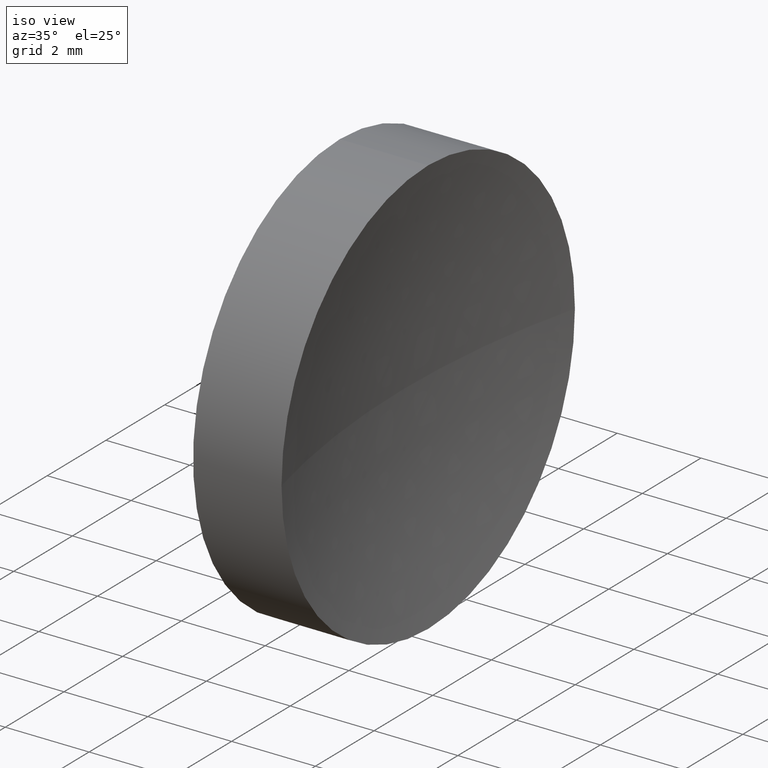
[diagram: clean part render]
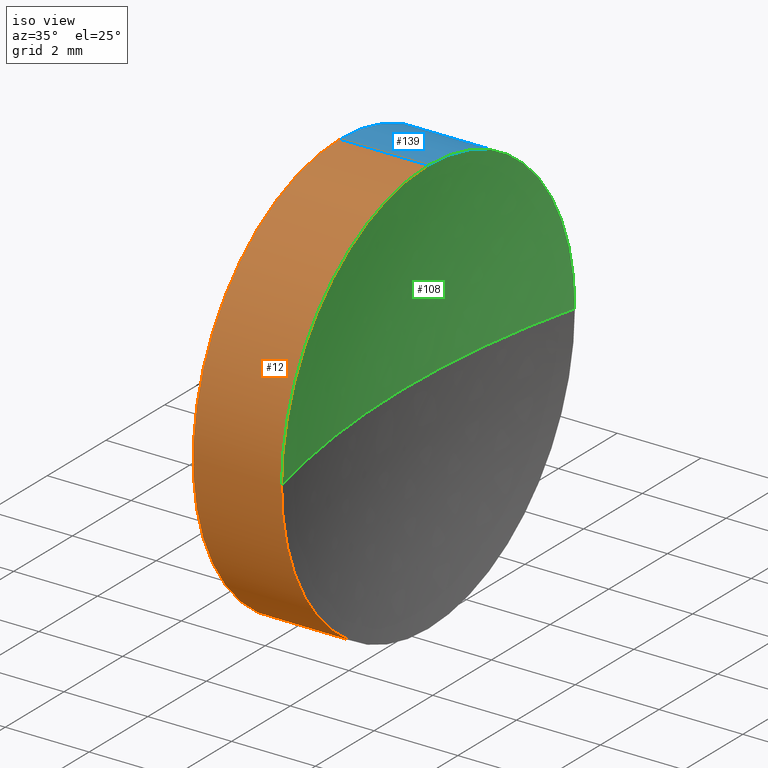
[diagram: same view with three faces highlighted in distinct colors, each labeled with its STEP entity id]
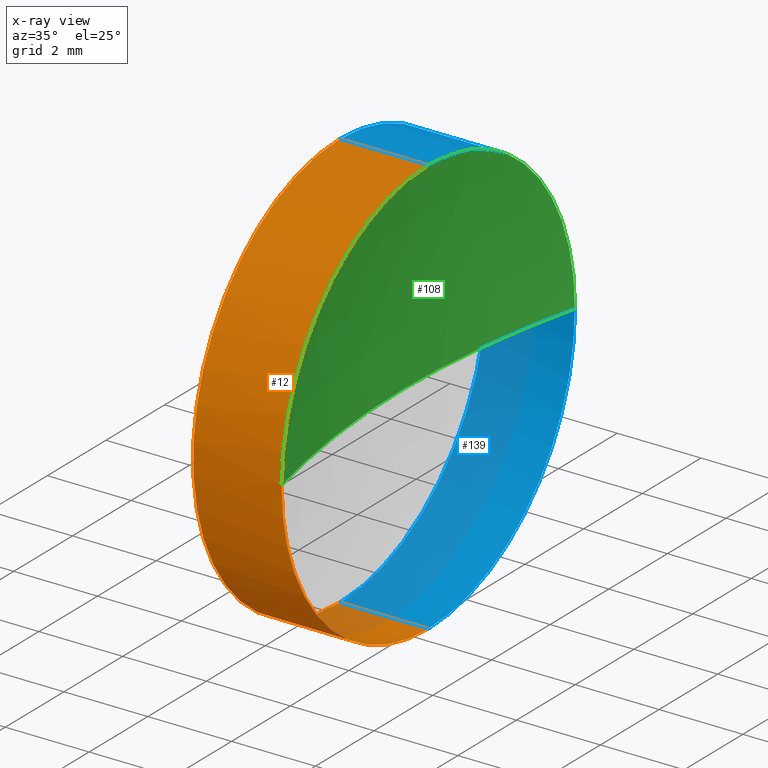
[diagram: x-ray of the same camera — body ghosted, the three highlighted faces saturated]
A machine part, iso view with three faces highlighted in distinct colors.
The next image is the same camera in x-ray (body ghosted, the three faces saturated) — at least one of them is partly hidden behind the body in this view.
Their STEP definitions:

[orange] entity #12 — the highlighted cylindrical surface (partial cylindrical patch) has radius 5 mm, axis along (-1, -0, -0).
#3 = AXIS2_PLACEMENT_3D ( 'NONE', #104, #116, #4 ) ;
#4 = DIRECTION ( 'NONE',  ( 0.0000000000000000000, 0.0000000000000000000, 1.000000000000000000 ) ) ;
#5 = DIRECTION ( 'NONE',  ( -1.000000000000000000, -0.0000000000000000000, -0.0000000000000000000 ) ) ;
#8 = EDGE_CURVE ( 'NONE', #183, #85, #186, .T. ) ;
#12 = ADVANCED_FACE ( 'NONE', ( #173 ), #156, .T. ) ;
#22 = VECTOR ( 'NONE', #124, 1000.000000000000000 ) ;
#25 = CARTESIAN_POINT ( 'NONE',  ( 46.42958549791029600, 26.08904114919495900, 0.0000000000000000000 ) ) ;
#29 = CARTESIAN_POINT ( 'NONE',  ( 44.31958549791029600, 26.08904114919495900, 5.000000000000000900 ) ) ;
#32 = LINE ( 'NONE', #109, #22 ) ;
#39 = DIRECTION ( 'NONE',  ( 0.0000000000000000000, 0.0000000000000000000, 1.000000000000000000 ) ) ;
#41 = VERTEX_POINT ( 'NONE', #81 ) ;
#42 = EDGE_CURVE ( 'NONE', #41, #183, #122, .T. ) ;
#44 = VECTOR ( 'NONE', #53, 1000.000000000000000 ) ;
#53 = DIRECTION ( 'NONE',  ( -1.000000000000000000, -0.0000000000000000000, -0.0000000000000000000 ) ) ;
#56 = AXIS2_PLACEMENT_3D ( 'NONE', #177, #181, #57 ) ;
#57 = DIRECTION ( 'NONE',  ( 0.0000000000000000000, 0.0000000000000000000, 1.000000000000000000 ) ) ;
#70 = VERTEX_POINT ( 'NONE', #80 ) ;
#79 = ORIENTED_EDGE ( 'NONE', *, *, #155, .T. ) ;
#80 = CARTESIAN_POINT ( 'NONE',  ( 46.42958549791030300, 21.08904114919495900, -6.123233995736764300E-016 ) ) ;
#81 = CARTESIAN_POINT ( 'NONE',  ( 46.42958549791029600, 26.08904114919495900, -5.000000000000000900 ) ) ;
#82 = DIRECTION ( 'NONE',  ( -1.000000000000000000, -0.0000000000000000000, -0.0000000000000000000 ) ) ;
#85 = VERTEX_POINT ( 'NONE', #29 ) ;
#94 = EDGE_CURVE ( 'NONE', #70, #141, #146, .T. ) ;
#97 = DIRECTION ( 'NONE',  ( 0.0000000000000000000, 0.0000000000000000000, 1.000000000000000000 ) ) ;
#100 = EDGE_LOOP ( 'NONE', ( #128, #126, #105, #79, #102 ) ) ;
#102 = ORIENTED_EDGE ( 'NONE', *, *, #8, .F. ) ;
#103 = AXIS2_PLACEMENT_3D ( 'NONE', #159, #5, #39 ) ;
#104 = CARTESIAN_POINT ( 'NONE',  ( 42.44986111413682300, 26.08904114919495900, 0.0000000000000000000 ) ) ;
#105 = ORIENTED_EDGE ( 'NONE', *, *, #94, .T. ) ;
#109 = CARTESIAN_POINT ( 'NONE',  ( 42.44986111413682300, 26.08904114919495900, 5.000000000000000900 ) ) ;
#111 = CIRCLE ( 'NONE', #56, 5.000000000000000900 ) ;
#116 = DIRECTION ( 'NONE',  ( -1.000000000000000000, -0.0000000000000000000, -0.0000000000000000000 ) ) ;
#122 = LINE ( 'NONE', #160, #44 ) ;
#124 = DIRECTION ( 'NONE',  ( -1.000000000000000000, -0.0000000000000000000, -0.0000000000000000000 ) ) ;
#126 = ORIENTED_EDGE ( 'NONE', *, *, #169, .T. ) ;
#128 = ORIENTED_EDGE ( 'NONE', *, *, #42, .F. ) ;
#137 = CARTESIAN_POINT ( 'NONE',  ( 46.42958549791029600, 26.08904114919495900, 5.000000000000000900 ) ) ;
#141 = VERTEX_POINT ( 'NONE', #137 ) ;
#146 = CIRCLE ( 'NONE', #185, 5.000000000000000900 ) ;
#154 = CARTESIAN_POINT ( 'NONE',  ( 44.31958549791029600, 26.08904114919495900, -5.000000000000000900 ) ) ;
#155 = EDGE_CURVE ( 'NONE', #141, #85, #32, .T. ) ;
#156 = CYLINDRICAL_SURFACE ( 'NONE', #3, 5.000000000000000900 ) ;
#159 = CARTESIAN_POINT ( 'NONE',  ( 44.31958549791029600, 26.08904114919495900, 0.0000000000000000000 ) ) ;
#160 = CARTESIAN_POINT ( 'NONE',  ( 42.44986111413682300, 26.08904114919495900, -5.000000000000000900 ) ) ;
#169 = EDGE_CURVE ( 'NONE', #41, #70, #111, .T. ) ;
#173 = FACE_OUTER_BOUND ( 'NONE', #100, .T. ) ;
#177 = CARTESIAN_POINT ( 'NONE',  ( 46.42958549791029600, 26.08904114919495900, 0.0000000000000000000 ) ) ;
#181 = DIRECTION ( 'NONE',  ( -1.000000000000000000, -0.0000000000000000000, -0.0000000000000000000 ) ) ;
#183 = VERTEX_POINT ( 'NONE', #154 ) ;
#185 = AXIS2_PLACEMENT_3D ( 'NONE', #25, #82, #97 ) ;
#186 = CIRCLE ( 'NONE', #103, 5.000000000000000900 ) ;

[blue] entity #139 — the highlighted cylindrical surface (partial cylindrical patch) has radius 5 mm, axis along (-1, -0, -0).
#16 = VERTEX_POINT ( 'NONE', #150 ) ;
#18 = AXIS2_PLACEMENT_3D ( 'NONE', #115, #35, #145 ) ;
#21 = DIRECTION ( 'NONE',  ( 0.0000000000000000000, 0.0000000000000000000, 1.000000000000000000 ) ) ;
#22 = VECTOR ( 'NONE', #124, 1000.000000000000000 ) ;
#23 = ORIENTED_EDGE ( 'NONE', *, *, #63, .T. ) ;
#24 = DIRECTION ( 'NONE',  ( -1.000000000000000000, -0.0000000000000000000, -0.0000000000000000000 ) ) ;
#26 = EDGE_LOOP ( 'NONE', ( #168, #87, #77, #62, #23 ) ) ;
#29 = CARTESIAN_POINT ( 'NONE',  ( 44.31958549791029600, 26.08904114919495900, 5.000000000000000900 ) ) ;
#32 = LINE ( 'NONE', #109, #22 ) ;
#34 = AXIS2_PLACEMENT_3D ( 'NONE', #107, #24, #135 ) ;
#35 = DIRECTION ( 'NONE',  ( -1.000000000000000000, -0.0000000000000000000, -0.0000000000000000000 ) ) ;
#41 = VERTEX_POINT ( 'NONE', #81 ) ;
#42 = EDGE_CURVE ( 'NONE', #41, #183, #122, .T. ) ;
#44 = VECTOR ( 'NONE', #53, 1000.000000000000000 ) ;
#46 = CARTESIAN_POINT ( 'NONE',  ( 46.42958549791029600, 26.08904114919495900, 0.0000000000000000000 ) ) ;
#53 = DIRECTION ( 'NONE',  ( -1.000000000000000000, -0.0000000000000000000, -0.0000000000000000000 ) ) ;
#59 = EDGE_CURVE ( 'NONE', #85, #183, #170, .T. ) ;
#62 = ORIENTED_EDGE ( 'NONE', *, *, #155, .F. ) ;
#63 = EDGE_CURVE ( 'NONE', #141, #16, #117, .T. ) ;
#65 = AXIS2_PLACEMENT_3D ( 'NONE', #174, #88, #21 ) ;
#77 = ORIENTED_EDGE ( 'NONE', *, *, #59, .F. ) ;
#81 = CARTESIAN_POINT ( 'NONE',  ( 46.42958549791029600, 26.08904114919495900, -5.000000000000000900 ) ) ;
#85 = VERTEX_POINT ( 'NONE', #29 ) ;
#87 = ORIENTED_EDGE ( 'NONE', *, *, #42, .T. ) ;
#88 = DIRECTION ( 'NONE',  ( -1.000000000000000000, -0.0000000000000000000, -0.0000000000000000000 ) ) ;
#89 = EDGE_CURVE ( 'NONE', #16, #41, #132, .T. ) ;
#107 = CARTESIAN_POINT ( 'NONE',  ( 42.44986111413682300, 26.08904114919495900, 0.0000000000000000000 ) ) ;
#109 = CARTESIAN_POINT ( 'NONE',  ( 42.44986111413682300, 26.08904114919495900, 5.000000000000000900 ) ) ;
#110 = AXIS2_PLACEMENT_3D ( 'NONE', #46, #123, #179 ) ;
#115 = CARTESIAN_POINT ( 'NONE',  ( 44.31958549791029600, 26.08904114919495900, 0.0000000000000000000 ) ) ;
#117 = CIRCLE ( 'NONE', #65, 5.000000000000000900 ) ;
#122 = LINE ( 'NONE', #160, #44 ) ;
#123 = DIRECTION ( 'NONE',  ( -1.000000000000000000, -0.0000000000000000000, -0.0000000000000000000 ) ) ;
#124 = DIRECTION ( 'NONE',  ( -1.000000000000000000, -0.0000000000000000000, -0.0000000000000000000 ) ) ;
#125 = CYLINDRICAL_SURFACE ( 'NONE', #34, 5.000000000000000900 ) ;
#132 = CIRCLE ( 'NONE', #110, 5.000000000000000900 ) ;
#135 = DIRECTION ( 'NONE',  ( 0.0000000000000000000, 0.0000000000000000000, 1.000000000000000000 ) ) ;
#137 = CARTESIAN_POINT ( 'NONE',  ( 46.42958549791029600, 26.08904114919495900, 5.000000000000000900 ) ) ;
#139 = ADVANCED_FACE ( 'NONE', ( #163 ), #125, .T. ) ;
#141 = VERTEX_POINT ( 'NONE', #137 ) ;
#145 = DIRECTION ( 'NONE',  ( 0.0000000000000000000, 0.0000000000000000000, 1.000000000000000000 ) ) ;
#150 = CARTESIAN_POINT ( 'NONE',  ( 46.42958549791030300, 31.08904114919495900, 0.0000000000000000000 ) ) ;
#154 = CARTESIAN_POINT ( 'NONE',  ( 44.31958549791029600, 26.08904114919495900, -5.000000000000000900 ) ) ;
#155 = EDGE_CURVE ( 'NONE', #141, #85, #32, .T. ) ;
#160 = CARTESIAN_POINT ( 'NONE',  ( 42.44986111413682300, 26.08904114919495900, -5.000000000000000900 ) ) ;
#163 = FACE_OUTER_BOUND ( 'NONE', #26, .T. ) ;
#168 = ORIENTED_EDGE ( 'NONE', *, *, #89, .T. ) ;
#170 = CIRCLE ( 'NONE', #18, 5.000000000000000900 ) ;
#174 = CARTESIAN_POINT ( 'NONE',  ( 46.42958549791029600, 26.08904114919495900, 0.0000000000000000000 ) ) ;
#179 = DIRECTION ( 'NONE',  ( 0.0000000000000000000, 0.0000000000000000000, 1.000000000000000000 ) ) ;
#183 = VERTEX_POINT ( 'NONE', #154 ) ;

[green] entity #108 — the highlighted spherical surface has radius 20.7968 mm.
#9 = DIRECTION ( 'NONE',  ( 0.0000000000000000000, 1.000000000000000000, 0.0000000000000000000 ) ) ;
#13 = DIRECTION ( 'NONE',  ( 0.0000000000000000000, 0.0000000000000000000, -1.000000000000000000 ) ) ;
#14 = AXIS2_PLACEMENT_3D ( 'NONE', #93, #92, #71 ) ;
#16 = VERTEX_POINT ( 'NONE', #150 ) ;
#19 = CIRCLE ( 'NONE', #144, 20.79680093179732500 ) ;
#21 = DIRECTION ( 'NONE',  ( 0.0000000000000000000, 0.0000000000000000000, 1.000000000000000000 ) ) ;
#25 = CARTESIAN_POINT ( 'NONE',  ( 46.42958549791029600, 26.08904114919495900, 0.0000000000000000000 ) ) ;
#45 = ORIENTED_EDGE ( 'NONE', *, *, #63, .F. ) ;
#47 = AXIS2_PLACEMENT_3D ( 'NONE', #60, #13, #9 ) ;
#60 = CARTESIAN_POINT ( 'NONE',  ( 66.61638635878981100, 26.08904114919495500, 0.0000000000000000000 ) ) ;
#63 = EDGE_CURVE ( 'NONE', #141, #16, #117, .T. ) ;
#65 = AXIS2_PLACEMENT_3D ( 'NONE', #174, #88, #21 ) ;
#70 = VERTEX_POINT ( 'NONE', #80 ) ;
#71 = DIRECTION ( 'NONE',  ( 1.000000000000000000, 0.0000000000000000000, 0.0000000000000000000 ) ) ;
#80 = CARTESIAN_POINT ( 'NONE',  ( 46.42958549791030300, 21.08904114919495900, -6.123233995736764300E-016 ) ) ;
#82 = DIRECTION ( 'NONE',  ( -1.000000000000000000, -0.0000000000000000000, -0.0000000000000000000 ) ) ;
#84 = DIRECTION ( 'NONE',  ( 0.0000000000000000000, 1.000000000000000000, 1.224646799147353200E-016 ) ) ;
#86 = FACE_OUTER_BOUND ( 'NONE', #136, .T. ) ;
#88 = DIRECTION ( 'NONE',  ( -1.000000000000000000, -0.0000000000000000000, -0.0000000000000000000 ) ) ;
#92 = DIRECTION ( 'NONE',  ( 0.0000000000000000000, 0.0000000000000000000, 1.000000000000000000 ) ) ;
#93 = CARTESIAN_POINT ( 'NONE',  ( 66.61638635878981100, 26.08904114919495500, 0.0000000000000000000 ) ) ;
#94 = EDGE_CURVE ( 'NONE', #70, #141, #146, .T. ) ;
#95 = VERTEX_POINT ( 'NONE', #120 ) ;
#96 = CARTESIAN_POINT ( 'NONE',  ( 66.61638635878981100, 26.08904114919495500, 0.0000000000000000000 ) ) ;
#97 = DIRECTION ( 'NONE',  ( 0.0000000000000000000, 0.0000000000000000000, 1.000000000000000000 ) ) ;
#98 = CIRCLE ( 'NONE', #14, 20.79680093179732500 ) ;
#101 = EDGE_CURVE ( 'NONE', #16, #95, #98, .T. ) ;
#108 = ADVANCED_FACE ( 'NONE', ( #86 ), #166, .F. ) ;
#117 = CIRCLE ( 'NONE', #65, 5.000000000000000900 ) ;
#120 = CARTESIAN_POINT ( 'NONE',  ( 45.81958542699248900, 26.08904114919495500, 0.0000000000000000000 ) ) ;
#133 = ORIENTED_EDGE ( 'NONE', *, *, #180, .T. ) ;
#134 = DIRECTION ( 'NONE',  ( 0.0000000000000000000, 1.224646799147353200E-016, -1.000000000000000000 ) ) ;
#136 = EDGE_LOOP ( 'NONE', ( #182, #133, #184, #45 ) ) ;
#137 = CARTESIAN_POINT ( 'NONE',  ( 46.42958549791029600, 26.08904114919495900, 5.000000000000000900 ) ) ;
#141 = VERTEX_POINT ( 'NONE', #137 ) ;
#144 = AXIS2_PLACEMENT_3D ( 'NONE', #96, #134, #84 ) ;
#146 = CIRCLE ( 'NONE', #185, 5.000000000000000900 ) ;
#150 = CARTESIAN_POINT ( 'NONE',  ( 46.42958549791030300, 31.08904114919495900, 0.0000000000000000000 ) ) ;
#166 = SPHERICAL_SURFACE ( 'NONE', #47, 20.79680093179732500 ) ;
#174 = CARTESIAN_POINT ( 'NONE',  ( 46.42958549791029600, 26.08904114919495900, 0.0000000000000000000 ) ) ;
#180 = EDGE_CURVE ( 'NONE', #70, #95, #19, .T. ) ;
#182 = ORIENTED_EDGE ( 'NONE', *, *, #94, .F. ) ;
#184 = ORIENTED_EDGE ( 'NONE', *, *, #101, .F. ) ;
#185 = AXIS2_PLACEMENT_3D ( 'NONE', #25, #82, #97 ) ;